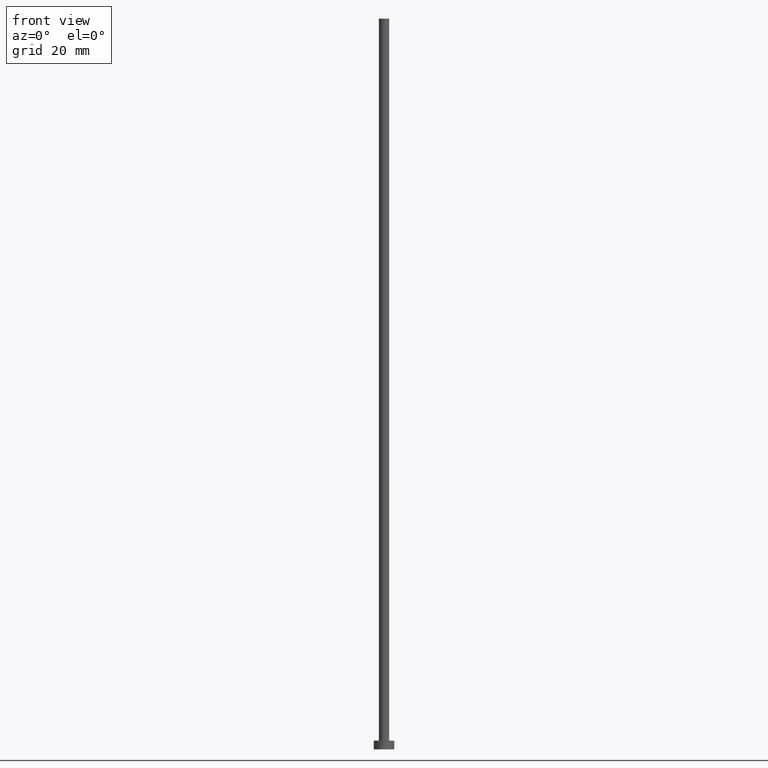
[diagram: clean part render]
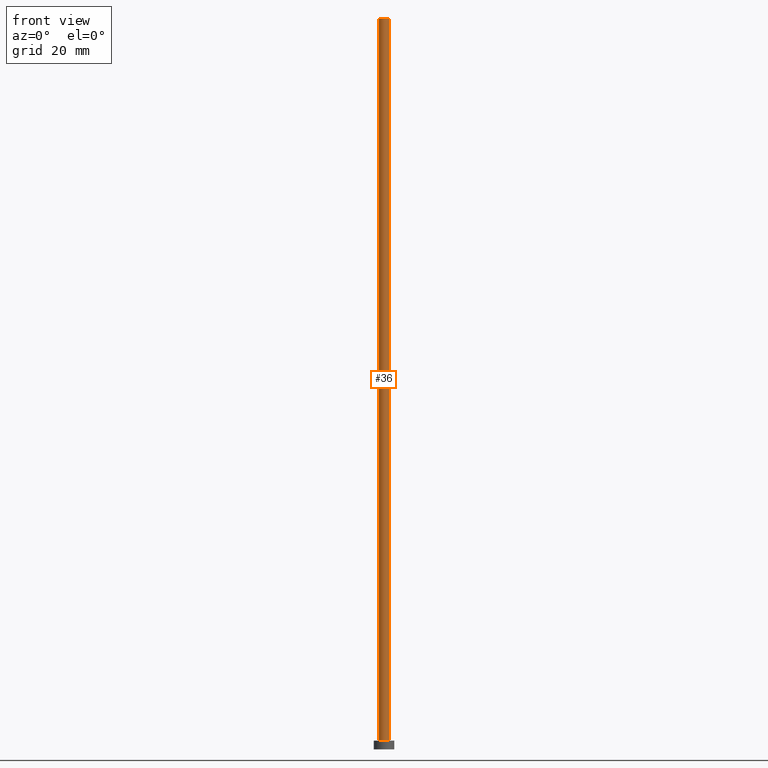
[diagram: same view with one face highlighted and labeled with its STEP entity id]
A machine part, front view. The second image highlights one B-rep face of the part: STEP entity #36.
In plain terms, the highlighted cylindrical surface (edge-blend (fillet) strip) has radius 1.75 mm, axis along (-0, -0, -1).
Its self-contained STEP definition (entity closure, byte-faithful):
#6 = ORIENTED_EDGE ( 'NONE', *, *, #171, .T. ) ;
#9 = DIRECTION ( 'NONE',  ( -0.000000000000000000, -0.000000000000000000, -1.000000000000000000 ) ) ;
#10 = CARTESIAN_POINT ( 'NONE',  ( -1.750000000000000000, 0.000000000000000000, 250.0000000000000000 ) ) ;
#28 = DIRECTION ( 'NONE',  ( -0.000000000000000000, -0.000000000000000000, -1.000000000000000000 ) ) ;
#31 = CARTESIAN_POINT ( 'NONE',  ( 0.000000000000000000, 0.000000000000000000, 250.0000000000000000 ) ) ;
#34 = LINE ( 'NONE', #246, #212 ) ;
#36 = ADVANCED_FACE ( 'NONE', ( #111 ), #154, .T. ) ;
#39 = VERTEX_POINT ( 'NONE', #90 ) ;
#45 = VERTEX_POINT ( 'NONE', #10 ) ;
#46 = AXIS2_PLACEMENT_3D ( 'NONE', #187, #170, #156 ) ;
#47 = ORIENTED_EDGE ( 'NONE', *, *, #229, .F. ) ;
#52 = DIRECTION ( 'NONE',  ( 1.000000000000000000, 0.000000000000000000, 0.000000000000000000 ) ) ;
#72 = DIRECTION ( 'NONE',  ( -1.000000000000000000, 0.000000000000000000, 0.000000000000000000 ) ) ;
#73 = EDGE_CURVE ( 'NONE', #39, #220, #237, .T. ) ;
#75 = DIRECTION ( 'NONE',  ( -0.000000000000000000, -0.000000000000000000, -1.000000000000000000 ) ) ;
#84 = CIRCLE ( 'NONE', #146, 1.750000000000000000 ) ;
#90 = CARTESIAN_POINT ( 'NONE',  ( -1.750000000000000000, 0.000000000000000000, 3.000000000000000000 ) ) ;
#93 = DIRECTION ( 'NONE',  ( 0.000000000000000000, 0.000000000000000000, 1.000000000000000000 ) ) ;
#108 = CARTESIAN_POINT ( 'NONE',  ( 0.000000000000000000, 0.000000000000000000, 250.0000000000000000 ) ) ;
#111 = FACE_OUTER_BOUND ( 'NONE', #152, .T. ) ;
#129 = ORIENTED_EDGE ( 'NONE', *, *, #73, .T. ) ;
#131 = LINE ( 'NONE', #206, #189 ) ;
#143 = AXIS2_PLACEMENT_3D ( 'NONE', #108, #9, #72 ) ;
#146 = AXIS2_PLACEMENT_3D ( 'NONE', #31, #93, #52 ) ;
#151 = EDGE_CURVE ( 'NONE', #244, #220, #34, .T. ) ;
#152 = EDGE_LOOP ( 'NONE', ( #203, #47, #6, #129 ) ) ;
#154 = CYLINDRICAL_SURFACE ( 'NONE', #143, 1.750000000000000000 ) ;
#156 = DIRECTION ( 'NONE',  ( 1.000000000000000000, 0.000000000000000000, 0.000000000000000000 ) ) ;
#160 = CARTESIAN_POINT ( 'NONE',  ( 1.750000000000000000, 2.143131898507868297E-16, 250.0000000000000000 ) ) ;
#170 = DIRECTION ( 'NONE',  ( 0.000000000000000000, 0.000000000000000000, 1.000000000000000000 ) ) ;
#171 = EDGE_CURVE ( 'NONE', #45, #39, #131, .T. ) ;
#172 = CARTESIAN_POINT ( 'NONE',  ( 1.750000000000000000, 2.143131898507868297E-16, 3.000000000000000000 ) ) ;
#187 = CARTESIAN_POINT ( 'NONE',  ( 0.000000000000000000, 0.000000000000000000, 3.000000000000000000 ) ) ;
#189 = VECTOR ( 'NONE', #28, 1000.000000000000000 ) ;
#203 = ORIENTED_EDGE ( 'NONE', *, *, #151, .F. ) ;
#206 = CARTESIAN_POINT ( 'NONE',  ( -1.750000000000000000, 0.000000000000000000, 250.0000000000000000 ) ) ;
#212 = VECTOR ( 'NONE', #75, 1000.000000000000000 ) ;
#220 = VERTEX_POINT ( 'NONE', #172 ) ;
#229 = EDGE_CURVE ( 'NONE', #45, #244, #84, .T. ) ;
#237 = CIRCLE ( 'NONE', #46, 1.750000000000000000 ) ;
#244 = VERTEX_POINT ( 'NONE', #160 ) ;
#246 = CARTESIAN_POINT ( 'NONE',  ( 1.750000000000000000, 2.143131898507868297E-16, 250.0000000000000000 ) ) ;